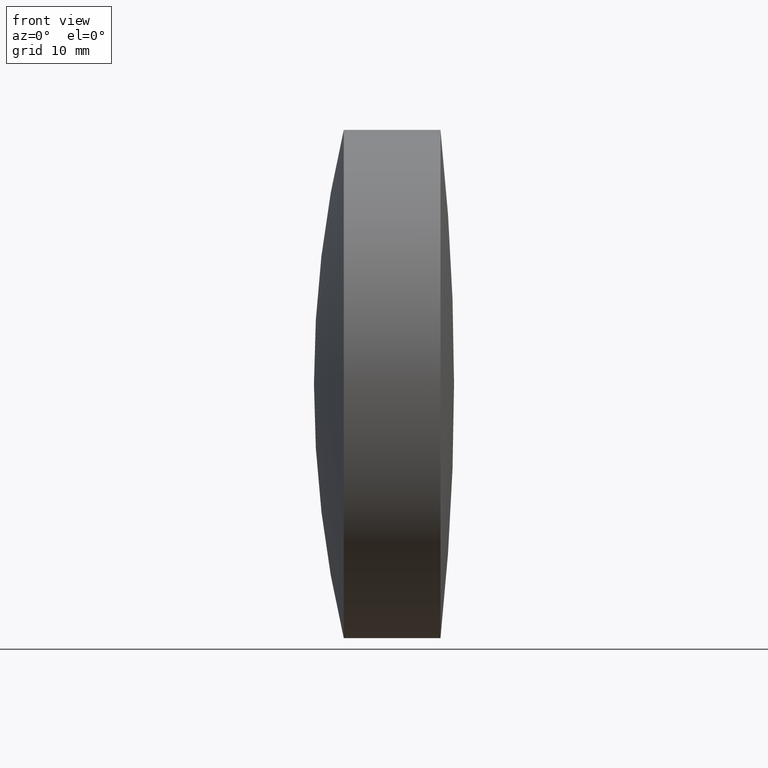
[diagram: clean part render]
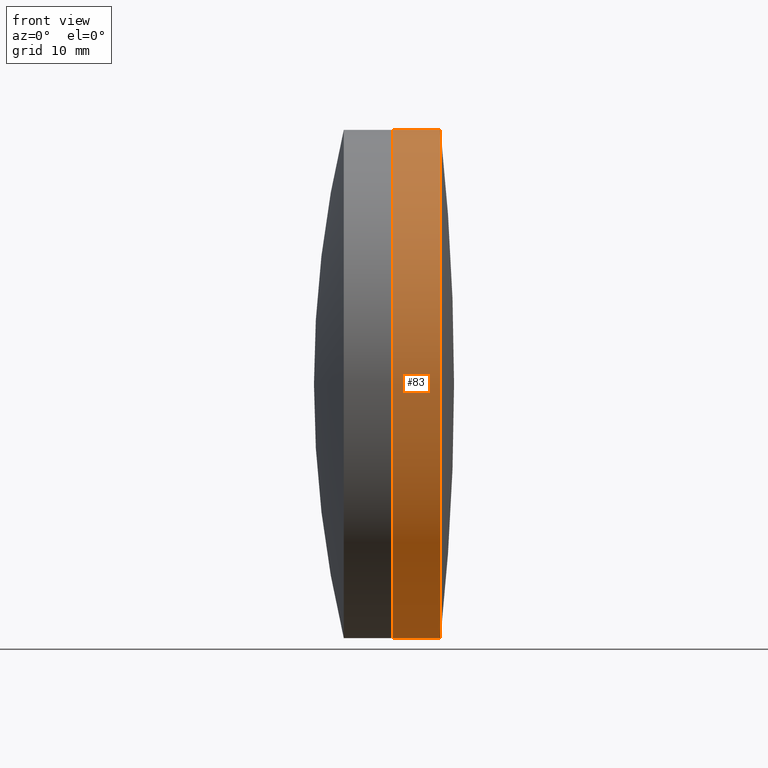
[diagram: same view with one face highlighted and labeled with its STEP entity id]
A machine part, front view. The second image highlights one B-rep face of the part: STEP entity #83.
In plain terms, the highlighted cylindrical surface (partial cylindrical patch) has radius 25.4 mm, axis along (-1, -0, -0).
Its self-contained STEP definition (entity closure, byte-faithful):
#11 = ORIENTED_EDGE ( 'NONE', *, *, #113, .F. ) ;
#13 = ORIENTED_EDGE ( 'NONE', *, *, #343, .F. ) ;
#19 = DIRECTION ( 'NONE',  ( 0.0000000000000000000, 0.0000000000000000000, 1.000000000000000000 ) ) ;
#47 = ORIENTED_EDGE ( 'NONE', *, *, #163, .T. ) ;
#51 = DIRECTION ( 'NONE',  ( -1.000000000000000000, -0.0000000000000000000, -0.0000000000000000000 ) ) ;
#56 = CARTESIAN_POINT ( 'NONE',  ( -0.5519199926577972300, 0.0000000000000000000, 0.0000000000000000000 ) ) ;
#66 = CIRCLE ( 'NONE', #157, 25.40000000000002700 ) ;
#72 = VERTEX_POINT ( 'NONE', #132 ) ;
#82 = VECTOR ( 'NONE', #150, 1000.000000000000000 ) ;
#83 = ADVANCED_FACE ( 'NONE', ( #345 ), #238, .T. ) ;
#86 = VECTOR ( 'NONE', #51, 1000.000000000000000 ) ;
#91 = CARTESIAN_POINT ( 'NONE',  ( 347.2010682353029000, 0.0000000000000000000, 25.39999999999994900 ) ) ;
#113 = EDGE_CURVE ( 'NONE', #72, #138, #66, .T. ) ;
#123 = CARTESIAN_POINT ( 'NONE',  ( 347.2010682353029000, 3.110602869834273700E-015, -25.39999999999994900 ) ) ;
#131 = LINE ( 'NONE', #258, #82 ) ;
#132 = CARTESIAN_POINT ( 'NONE',  ( 342.4559606340186500, 3.110602869834278400E-015, -25.40000000000000900 ) ) ;
#138 = VERTEX_POINT ( 'NONE', #309 ) ;
#141 = LINE ( 'NONE', #302, #86 ) ;
#150 = DIRECTION ( 'NONE',  ( -1.000000000000000000, -0.0000000000000000000, -0.0000000000000000000 ) ) ;
#157 = AXIS2_PLACEMENT_3D ( 'NONE', #214, #178, #177 ) ;
#158 = DIRECTION ( 'NONE',  ( -1.000000000000000000, -0.0000000000000000000, -0.0000000000000000000 ) ) ;
#163 = EDGE_CURVE ( 'NONE', #242, #138, #131, .T. ) ;
#174 = DIRECTION ( 'NONE',  ( -1.000000000000000000, -0.0000000000000000000, -0.0000000000000000000 ) ) ;
#177 = DIRECTION ( 'NONE',  ( 0.0000000000000000000, 0.0000000000000000000, 1.000000000000000000 ) ) ;
#178 = DIRECTION ( 'NONE',  ( -1.000000000000000000, -0.0000000000000000000, -0.0000000000000000000 ) ) ;
#196 = AXIS2_PLACEMENT_3D ( 'NONE', #56, #174, #284 ) ;
#214 = CARTESIAN_POINT ( 'NONE',  ( 342.4559606340186500, 0.0000000000000000000, 0.0000000000000000000 ) ) ;
#224 = VERTEX_POINT ( 'NONE', #123 ) ;
#227 = EDGE_LOOP ( 'NONE', ( #13, #245, #47, #11 ) ) ;
#238 = CYLINDRICAL_SURFACE ( 'NONE', #196, 25.39999999999998800 ) ;
#242 = VERTEX_POINT ( 'NONE', #91 ) ;
#245 = ORIENTED_EDGE ( 'NONE', *, *, #261, .T. ) ;
#258 = CARTESIAN_POINT ( 'NONE',  ( -0.5519199926577972300, 0.0000000000000000000, 25.39999999999998800 ) ) ;
#261 = EDGE_CURVE ( 'NONE', #224, #242, #316, .T. ) ;
#284 = DIRECTION ( 'NONE',  ( 0.0000000000000000000, 0.0000000000000000000, 1.000000000000000000 ) ) ;
#302 = CARTESIAN_POINT ( 'NONE',  ( -0.5519199926577972300, 3.110602869834276100E-015, -25.39999999999998800 ) ) ;
#309 = CARTESIAN_POINT ( 'NONE',  ( 342.4559606340186500, 0.0000000000000000000, 25.40000000000000900 ) ) ;
#316 = CIRCLE ( 'NONE', #339, 25.39999999999994900 ) ;
#323 = CARTESIAN_POINT ( 'NONE',  ( 347.2010682353029000, 0.0000000000000000000, 0.0000000000000000000 ) ) ;
#339 = AXIS2_PLACEMENT_3D ( 'NONE', #323, #158, #19 ) ;
#343 = EDGE_CURVE ( 'NONE', #224, #72, #141, .T. ) ;
#345 = FACE_OUTER_BOUND ( 'NONE', #227, .T. ) ;